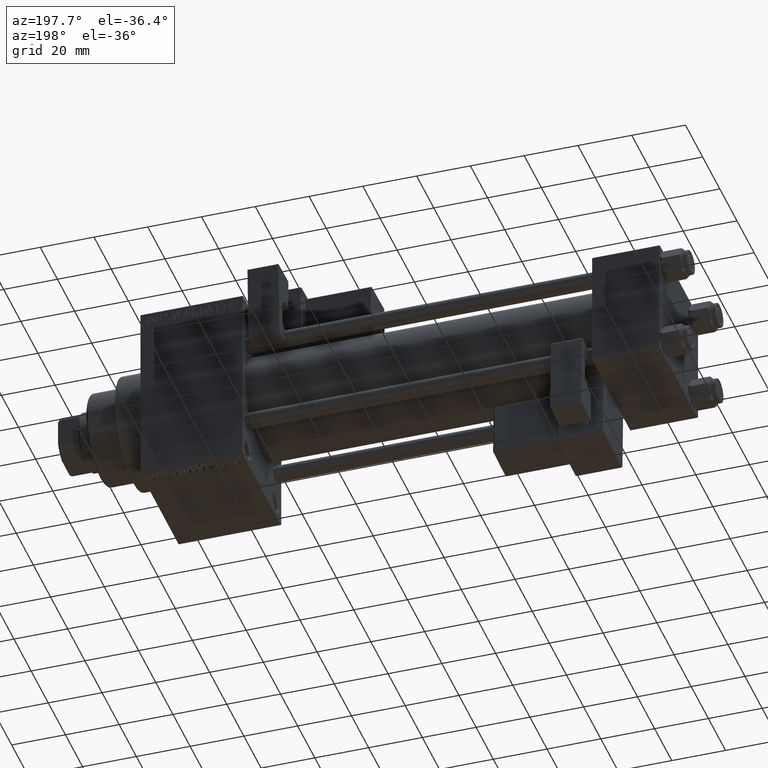
[diagram: clean part render]
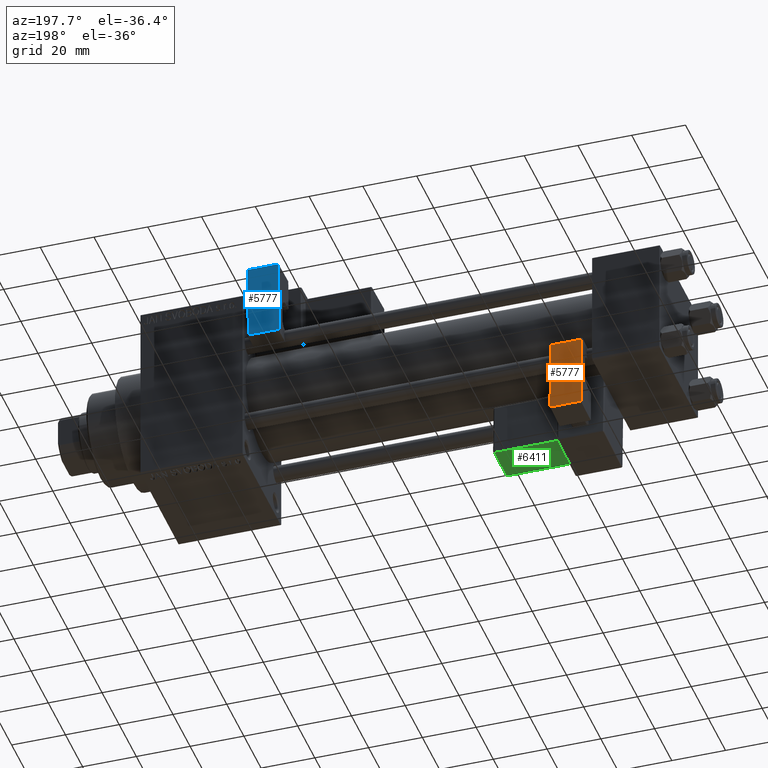
[diagram: same view with three faces highlighted in distinct colors, each labeled with its STEP entity id]
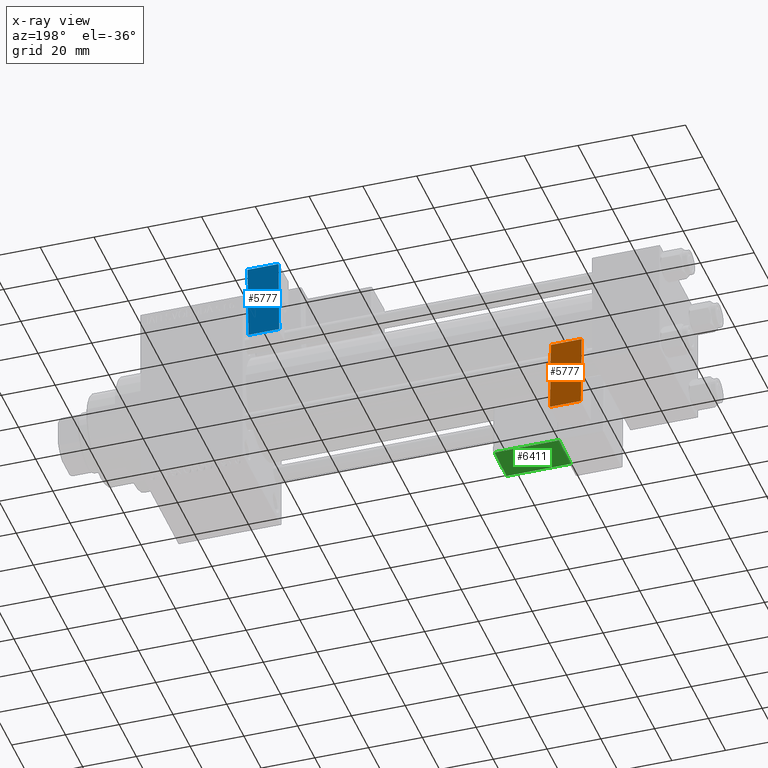
[diagram: x-ray of the same camera — body ghosted, the three highlighted faces saturated]
A machine part, auxiliary view with three faces highlighted in distinct colors.
The next image is the same camera in x-ray (body ghosted, the three faces saturated) — at least one of them is partly hidden behind the body in this view.
Their STEP definitions:

[orange] entity #5777 — the highlighted planar face has unit normal (0, -0.9994, -0.0353).
#3132 = VECTOR ( 'NONE', #38601, 1000.000000000000000 ) ;
#4047 = DIRECTION ( 'NONE',  ( -0.000000000000000000, -0.000000000000000000, -1.000000000000000000 ) ) ;
#5119 = CARTESIAN_POINT ( 'NONE',  ( 5.750000000000000000, 5.750000000000001776, 28.00000000000000000 ) ) ;
#5370 = FACE_OUTER_BOUND ( 'NONE', #7680, .T. ) ;
#5777 = ADVANCED_FACE ( 'NONE', ( #5370 ), #13618, .F. ) ;
#7680 = EDGE_LOOP ( 'NONE', ( #20689, #27195, #37481, #8357 ) ) ;
#7907 = EDGE_CURVE ( 'NONE', #12040, #24354, #49379, .T. ) ;
#8178 = VERTEX_POINT ( 'NONE', #47842 ) ;
#8357 = ORIENTED_EDGE ( 'NONE', *, *, #7907, .T. ) ;
#10260 = VERTEX_POINT ( 'NONE', #5119 ) ;
#12040 = VERTEX_POINT ( 'NONE', #18457 ) ;
#12622 = DIRECTION ( 'NONE',  ( 1.000000000000000000, 1.508455196501571183E-16, 0.000000000000000000 ) ) ;
#13618 = PLANE ( 'NONE',  #15796 ) ;
#14854 = DIRECTION ( 'NONE',  ( 1.000000000000000000, 1.508455196501571183E-16, -0.000000000000000000 ) ) ;
#15550 = CARTESIAN_POINT ( 'NONE',  ( 5.750000000000000000, 5.750000000000001776, 12.00000000000000000 ) ) ;
#15796 = AXIS2_PLACEMENT_3D ( 'NONE', #31607, #46874, #12622 ) ;
#18457 = CARTESIAN_POINT ( 'NONE',  ( 5.750000000000000000, 5.750000000000001776, 0.000000000000000000 ) ) ;
#20689 = ORIENTED_EDGE ( 'NONE', *, *, #48564, .F. ) ;
#22624 = CARTESIAN_POINT ( 'NONE',  ( -5.750000000000000000, 5.750000000000000000, 0.000000000000000000 ) ) ;
#23088 = CARTESIAN_POINT ( 'NONE',  ( -5.750000000000000000, 5.750000000000000000, 0.000000000000000000 ) ) ;
#23466 = EDGE_CURVE ( 'NONE', #10260, #12040, #30789, .T. ) ;
#24354 = VERTEX_POINT ( 'NONE', #22624 ) ;
#25274 = LINE ( 'NONE', #30251, #45221 ) ;
#26336 = VECTOR ( 'NONE', #4047, 1000.000000000000000 ) ;
#27195 = ORIENTED_EDGE ( 'NONE', *, *, #37693, .T. ) ;
#30251 = CARTESIAN_POINT ( 'NONE',  ( -5.750000000000000000, 5.750000000000000000, 12.00000000000000000 ) ) ;
#30789 = LINE ( 'NONE', #15550, #26336 ) ;
#31607 = CARTESIAN_POINT ( 'NONE',  ( -5.750000000000000000, 5.750000000000000000, 12.00000000000000000 ) ) ;
#33891 = VECTOR ( 'NONE', #14854, 1000.000000000000000 ) ;
#37481 = ORIENTED_EDGE ( 'NONE', *, *, #23466, .T. ) ;
#37609 = LINE ( 'NONE', #49115, #33891 ) ;
#37693 = EDGE_CURVE ( 'NONE', #8178, #10260, #37609, .T. ) ;
#38601 = DIRECTION ( 'NONE',  ( -1.000000000000000000, -1.508455196501571429E-16, -0.000000000000000000 ) ) ;
#42255 = DIRECTION ( 'NONE',  ( -0.000000000000000000, -0.000000000000000000, -1.000000000000000000 ) ) ;
#45221 = VECTOR ( 'NONE', #42255, 1000.000000000000000 ) ;
#46874 = DIRECTION ( 'NONE',  ( 1.508455196501571183E-16, -1.000000000000000000, 0.000000000000000000 ) ) ;
#47842 = CARTESIAN_POINT ( 'NONE',  ( -5.750000000000000000, 5.750000000000000000, 28.00000000000000000 ) ) ;
#48564 = EDGE_CURVE ( 'NONE', #8178, #24354, #25274, .T. ) ;
#49115 = CARTESIAN_POINT ( 'NONE',  ( -5.750000000000000000, 5.750000000000000000, 28.00000000000000000 ) ) ;
#49379 = LINE ( 'NONE', #23088, #3132 ) ;

[blue] entity #5777 — the highlighted planar face has unit normal (-0, -0.9994, 0.0353).
#3132 = VECTOR ( 'NONE', #38601, 1000.000000000000000 ) ;
#4047 = DIRECTION ( 'NONE',  ( -0.000000000000000000, -0.000000000000000000, -1.000000000000000000 ) ) ;
#5119 = CARTESIAN_POINT ( 'NONE',  ( 5.750000000000000000, 5.750000000000001776, 28.00000000000000000 ) ) ;
#5370 = FACE_OUTER_BOUND ( 'NONE', #7680, .T. ) ;
#5777 = ADVANCED_FACE ( 'NONE', ( #5370 ), #13618, .F. ) ;
#7680 = EDGE_LOOP ( 'NONE', ( #20689, #27195, #37481, #8357 ) ) ;
#7907 = EDGE_CURVE ( 'NONE', #12040, #24354, #49379, .T. ) ;
#8178 = VERTEX_POINT ( 'NONE', #47842 ) ;
#8357 = ORIENTED_EDGE ( 'NONE', *, *, #7907, .T. ) ;
#10260 = VERTEX_POINT ( 'NONE', #5119 ) ;
#12040 = VERTEX_POINT ( 'NONE', #18457 ) ;
#12622 = DIRECTION ( 'NONE',  ( 1.000000000000000000, 1.508455196501571183E-16, 0.000000000000000000 ) ) ;
#13618 = PLANE ( 'NONE',  #15796 ) ;
#14854 = DIRECTION ( 'NONE',  ( 1.000000000000000000, 1.508455196501571183E-16, -0.000000000000000000 ) ) ;
#15550 = CARTESIAN_POINT ( 'NONE',  ( 5.750000000000000000, 5.750000000000001776, 12.00000000000000000 ) ) ;
#15796 = AXIS2_PLACEMENT_3D ( 'NONE', #31607, #46874, #12622 ) ;
#18457 = CARTESIAN_POINT ( 'NONE',  ( 5.750000000000000000, 5.750000000000001776, 0.000000000000000000 ) ) ;
#20689 = ORIENTED_EDGE ( 'NONE', *, *, #48564, .F. ) ;
#22624 = CARTESIAN_POINT ( 'NONE',  ( -5.750000000000000000, 5.750000000000000000, 0.000000000000000000 ) ) ;
#23088 = CARTESIAN_POINT ( 'NONE',  ( -5.750000000000000000, 5.750000000000000000, 0.000000000000000000 ) ) ;
#23466 = EDGE_CURVE ( 'NONE', #10260, #12040, #30789, .T. ) ;
#24354 = VERTEX_POINT ( 'NONE', #22624 ) ;
#25274 = LINE ( 'NONE', #30251, #45221 ) ;
#26336 = VECTOR ( 'NONE', #4047, 1000.000000000000000 ) ;
#27195 = ORIENTED_EDGE ( 'NONE', *, *, #37693, .T. ) ;
#30251 = CARTESIAN_POINT ( 'NONE',  ( -5.750000000000000000, 5.750000000000000000, 12.00000000000000000 ) ) ;
#30789 = LINE ( 'NONE', #15550, #26336 ) ;
#31607 = CARTESIAN_POINT ( 'NONE',  ( -5.750000000000000000, 5.750000000000000000, 12.00000000000000000 ) ) ;
#33891 = VECTOR ( 'NONE', #14854, 1000.000000000000000 ) ;
#37481 = ORIENTED_EDGE ( 'NONE', *, *, #23466, .T. ) ;
#37609 = LINE ( 'NONE', #49115, #33891 ) ;
#37693 = EDGE_CURVE ( 'NONE', #8178, #10260, #37609, .T. ) ;
#38601 = DIRECTION ( 'NONE',  ( -1.000000000000000000, -1.508455196501571429E-16, -0.000000000000000000 ) ) ;
#42255 = DIRECTION ( 'NONE',  ( -0.000000000000000000, -0.000000000000000000, -1.000000000000000000 ) ) ;
#45221 = VECTOR ( 'NONE', #42255, 1000.000000000000000 ) ;
#46874 = DIRECTION ( 'NONE',  ( 1.508455196501571183E-16, -1.000000000000000000, 0.000000000000000000 ) ) ;
#47842 = CARTESIAN_POINT ( 'NONE',  ( -5.750000000000000000, 5.750000000000000000, 28.00000000000000000 ) ) ;
#48564 = EDGE_CURVE ( 'NONE', #8178, #24354, #25274, .T. ) ;
#49115 = CARTESIAN_POINT ( 'NONE',  ( -5.750000000000000000, 5.750000000000000000, 28.00000000000000000 ) ) ;
#49379 = LINE ( 'NONE', #23088, #3132 ) ;

[green] entity #6411 — the highlighted planar face has unit normal (-0, -0.0353, 0.9994).
#159 = DIRECTION ( 'NONE',  ( -1.000000000000000000, 0.000000000000000000, -1.334402673828313339E-16 ) ) ;
#362 = ORIENTED_EDGE ( 'NONE', *, *, #45266, .T. ) ;
#2492 = CARTESIAN_POINT ( 'NONE',  ( 33.75000000000000000, -15.25000000000000000, 2.000000000000008438 ) ) ;
#2739 = DIRECTION ( 'NONE',  ( 1.000000000000000000, 0.000000000000000000, 1.334402673828313339E-16 ) ) ;
#3839 = DIRECTION ( 'NONE',  ( 5.473822126268816683E-48, -1.000000000000000000, -1.156482317317871725E-16 ) ) ;
#3843 = AXIS2_PLACEMENT_3D ( 'NONE', #2492, #10006, #2739 ) ;
#4230 = ORIENTED_EDGE ( 'NONE', *, *, #47704, .T. ) ;
#6411 = ADVANCED_FACE ( 'NONE', ( #40006 ), #44990, .F. ) ;
#8645 = CARTESIAN_POINT ( 'NONE',  ( 9.250000000000005329, -15.25000000000000000, 2.000000000000005329 ) ) ;
#9221 = CARTESIAN_POINT ( 'NONE',  ( 33.75000000000000000, -29.75000000000000000, 2.000000000000006661 ) ) ;
#10006 = DIRECTION ( 'NONE',  ( -1.334402673828313339E-16, -1.156482317317871725E-16, 1.000000000000000000 ) ) ;
#14967 = CARTESIAN_POINT ( 'NONE',  ( 33.25000000000000000, -15.75000000000000000, 2.000000000000008438 ) ) ;
#15258 = CARTESIAN_POINT ( 'NONE',  ( 33.75000000000000000, -15.75000000000000000, 2.000000000000008438 ) ) ;
#16732 = CARTESIAN_POINT ( 'NONE',  ( 33.25000000000000000, -29.75000000000000000, 2.000000000000006661 ) ) ;
#16823 = VERTEX_POINT ( 'NONE', #16732 ) ;
#18594 = LINE ( 'NONE', #49356, #31638 ) ;
#19236 = DIRECTION ( 'NONE',  ( -1.543213096464132036E-32, 1.000000000000000000, 1.156482317317871725E-16 ) ) ;
#20906 = CARTESIAN_POINT ( 'NONE',  ( 9.250000000000005329, -29.75000000000000000, 2.000000000000003553 ) ) ;
#22758 = ORIENTED_EDGE ( 'NONE', *, *, #30475, .T. ) ;
#23834 = VECTOR ( 'NONE', #42258, 1000.000000000000000 ) ;
#28319 = VERTEX_POINT ( 'NONE', #14967 ) ;
#29431 = LINE ( 'NONE', #9221, #34573 ) ;
#29848 = CARTESIAN_POINT ( 'NONE',  ( 9.250000000000005329, -15.75000000000000000, 2.000000000000004885 ) ) ;
#30475 = EDGE_CURVE ( 'NONE', #16823, #40896, #29431, .T. ) ;
#30983 = LINE ( 'NONE', #8645, #35832 ) ;
#31638 = VECTOR ( 'NONE', #3839, 1000.000000000000000 ) ;
#34573 = VECTOR ( 'NONE', #159, 1000.000000000000000 ) ;
#34722 = LINE ( 'NONE', #15258, #23834 ) ;
#35832 = VECTOR ( 'NONE', #19236, 1000.000000000000000 ) ;
#40006 = FACE_OUTER_BOUND ( 'NONE', #40981, .T. ) ;
#40896 = VERTEX_POINT ( 'NONE', #20906 ) ;
#40981 = EDGE_LOOP ( 'NONE', ( #362, #22758, #48407, #4230 ) ) ;
#42258 = DIRECTION ( 'NONE',  ( 1.000000000000000000, -0.000000000000000000, 1.334402673828313339E-16 ) ) ;
#44990 = PLANE ( 'NONE',  #3843 ) ;
#45252 = VERTEX_POINT ( 'NONE', #29848 ) ;
#45266 = EDGE_CURVE ( 'NONE', #28319, #16823, #18594, .T. ) ;
#47634 = EDGE_CURVE ( 'NONE', #40896, #45252, #30983, .T. ) ;
#47704 = EDGE_CURVE ( 'NONE', #45252, #28319, #34722, .T. ) ;
#48407 = ORIENTED_EDGE ( 'NONE', *, *, #47634, .T. ) ;
#49356 = CARTESIAN_POINT ( 'NONE',  ( 33.25000000000000000, -30.25000000000000000, 2.000000000000006661 ) ) ;